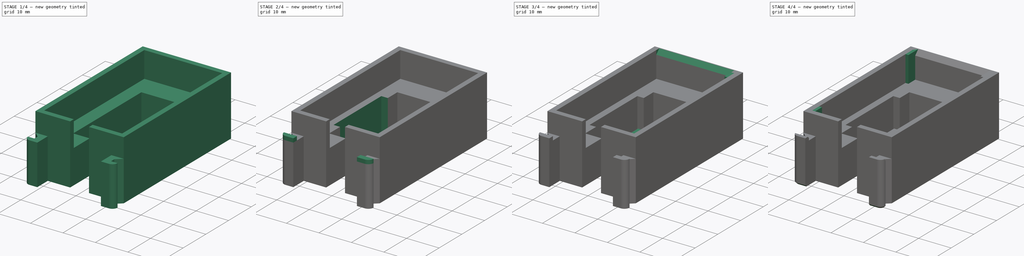
[diagram: build sequence overview — one tinted view per stage of 4, left to right]
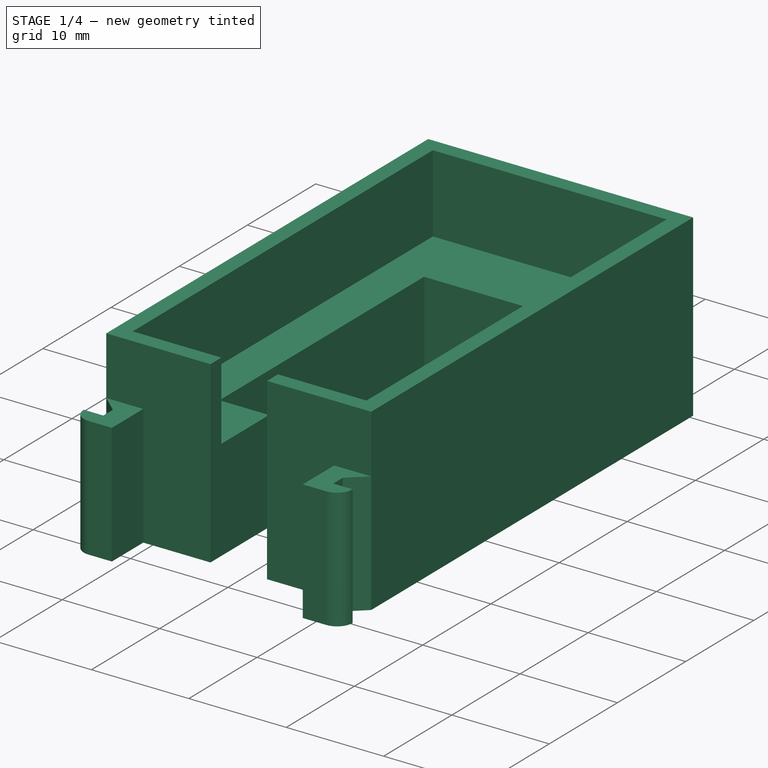
[diagram: stage 1 of 4 — iso view after this stage's code; geometry added in this stage tinted green]
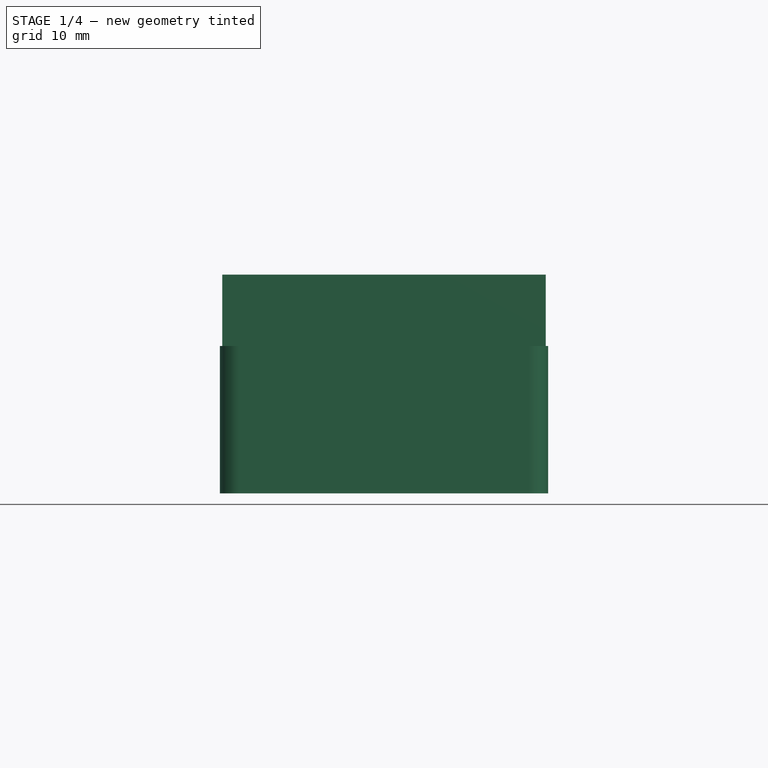
[diagram: stage 1 of 4 — front view after this stage's code; geometry added in this stage tinted green]
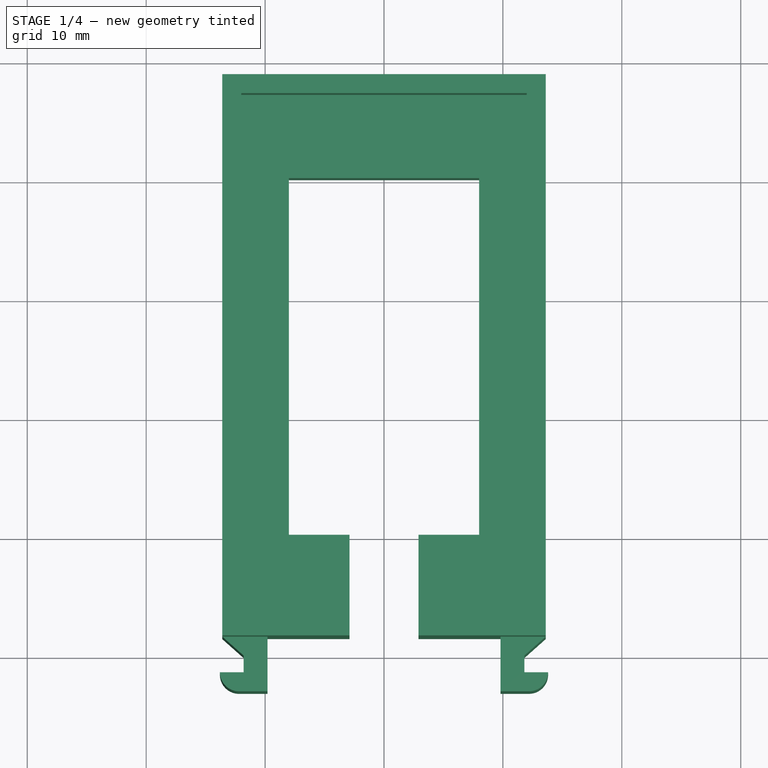
[diagram: stage 1 of 4 — top view after this stage's code; geometry added in this stage tinted green]
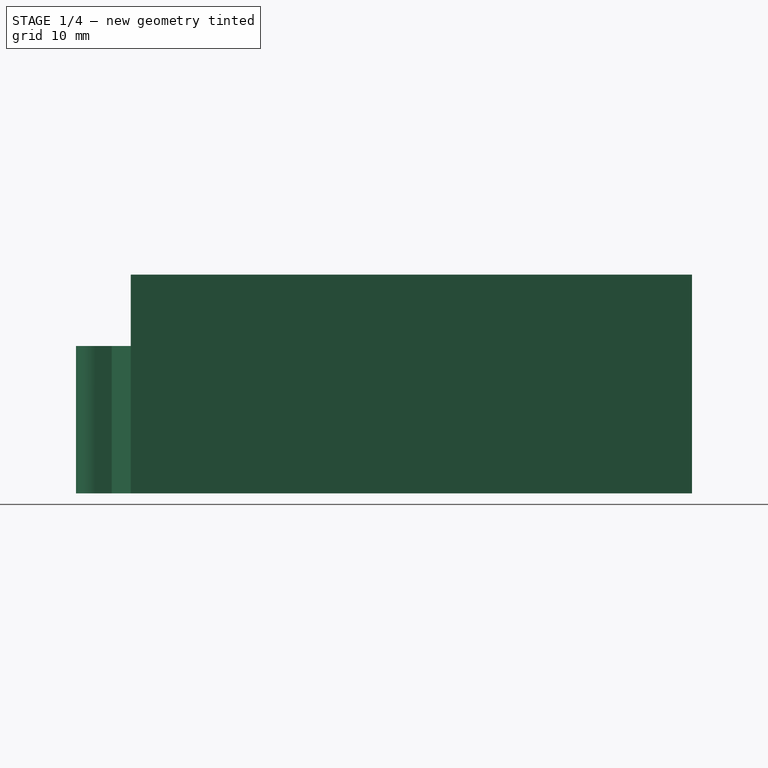
[diagram: stage 1 of 4 — right view after this stage's code; geometry added in this stage tinted green]
FCSTD DOCUMENT  (FreeCAD 0.21R33694 (Git))
Label: hub_holder
License: All rights reserved
LicenseURL: https://en.wikipedia.org/wiki/All_rights_reserved
objects: PartDesign::SubtractiveBox×3, PartDesign::Chamfer×3, Sketcher::SketchObject×2, PartDesign::Pad×2, PartDesign::Mirrored×2, PartDesign::AdditiveBox×2, PartDesign::Body×2, Spreadsheet::Sheet×1, PartDesign::FeatureBase×1, Part::Mirroring×1
note: 28 computed .brp shape members not serialized (recipe doc carries the construction recipe); baked Part::Feature solids carry a one-line shape summary decoded from their .brp

FEATURE [Spreadsheet::Sheet] Spreadsheet
  cells = A1='Name; B1='Value; C1='Description; D1='Fixed; E1='Calculated; F1='Public; G1='Axis; A2='bh_grid; B2(bh_grid)==5 mm; C2='The board holder grid size; D2='n; E2='n; F2='n; A3='bh_grid_x_size; B3(bh_grid_x_size)==trunc(bh_base_x / bh_grid / 2) * bh_grid * 2; E3='y; F3='n; G3='bh; A4='bh_grid_y_size; B4(bh_grid_y_size)==trunc((bh_base_x - bh_edge_to_center_of_first_grid_cutout_y) / bh_grid / 2) * bh_grid * 2; E4='y; F4='n; G4='bh; A5='bh_grid_x_amount; B5(bh_grid_x_amount)==trunc(bh_grid_x_size / bh_grid / 2) + 1; E5='y; F5='n; G5='bh; A6='bh_grid_y_amount; B6(bh_grid_y_amount)==trunc(bh_grid_y_size / bh_grid / 2) + 1; E6='y; F6='n; G6='bh; A7='bh_edge_to_usb_center_x; B7(bh_edge_to_usb_center_x)==3.5 * bh_grid; E7='y; G7='bh; A8='usb_socket_y; B8(usb_socket_y)==12.4 mm; C8='The cutout for the USB socket for (VID: Adafruit Industries LLC) (PID: 4055); D8='y; E8='n; F8='n; A9='usb_socket_x; B9(usb_socket_x)==23.2 mm; C9='The cutout for the USB socket for (VID: Adafruit Industries LLC) (PID: 4055); D9='y; E9='n; F9='n; A10='usb_socket_total_with_lip_x; B10(usb_socket_total_with_lip_x)==29 mm; C10='The total size with the lip of the USB socket for (VID: Adafruit Industries LLC) (PID: 4055); D10='y; E10='n; F10='n; A11='usb_socket_total_with_lip_y; B11(usb_socket_total_with_lip_y)==18.2 mm; C11='The total size with the lip of the USB socket for (VID: Adafruit Industries LLC) (PID: 4055); D11='y; E11='n; F11='n; A12='usb_socket_lip_only_z; B12(usb_socket_lip_only_z)==4.5 mm; C12='Only the lip of the USB socket for (VID: Adafruit Industries LLC) (PID: 4055); D12='y; E12='n; A13='usb_socket_lip_only_x; B13(usb_socket_lip_only_x)==(usb_socket_total_with_lip_x - usb_socket_x) / 2; C13='Only the lip of the USB socket for (VID: Adafruit Industries LLC) (PID: 4055); D13='y; E13='y; A14='usb_metal_gap; B14(usb_metal_gap)==2.7 mm; C14='The measured gap of the metal part of the USB plug between the casing and the lip of the usb socket; D14='y; E14='n; A15='usb_board_to_center_z; B15(usb_board_to_center_z)==mc_slot_offset_y / 2 - bh_base_z; A16='usb_metal_plug_width; B16(usb_metal_plug_width)==12.1 mm; A17='usb_metal_plug_height; B17(usb_metal_plug_height)==4.45 mm; A18='bh_base_x; B18(bh_base_x)==115 mm; C18='The base of the board holder; E18='y; G18='bh; A19='bh_base_y; B19(bh_base_y)==mc_grid - mc_back_thickness_z; C19='The base of the board holder; E19='y; G19='bh; A20='bh_base_z; B20(bh_base_z)==1.8 mm; E20='n; G20='bh; A25='bh_edge_to_center_of_first_grid_cutout_y; B25(bh_edge_to_center_of_first_grid_cutout_y)==usb_socket_lip_only_z + bh_grid / 2; D25='y; E25='y; G25='bh; A26='bh_support_beam_xy; B26(bh_support_beam_xy)==1.6 mm; C26='The width up the support beam to make the board holder more rigid, it should not interfere with the clip bottoms; D26='y; E26='n; G26='bh; A27='bh_support_beam_z; B27(bh_support_beam_z)==1.8 mm; D27='n; E27='n; G27='bh; A28='mc_back_thickness_z; B28(mc_back_thickness_z)==1.4 mm; A29='bh_stability_bar_z; B29(bh_stability_bar_z)==1.6 mm; A30='bh_stability_bar_width; B30(bh_stability_bar_width)==1.6 mm; A31='bh_stability_bar_x_size; B31(bh_stability_bar_x_size)==bh_base_x - 5 * bh_grid; A32='bh_stabiltiy_bar_x_amount; B32(bh_stabiltiy_bar_x_amount)==trunc(bh_stability_bar_x_size / bh_grid / 2) + 1; A33='bh_angle_connector_xz; B33(bh_angle_connector_xz)==3 mm; A34='bh_stability_bar_x_standoff; B34(bh_stability_bar_x_standoff)==bh_angle_connector_xz + 2 mm; A35='bh_stability_bar_y_size; B35(bh_stability_bar_y_size)==trunc((bh_base_x - bh_edge_to_center_of_first_grid_cutout_y) / bh_grid / 2) * bh_grid * 2; A36='bh_stabiltiy_bar_y_amount; B36(bh_stabiltiy_bar_y_amount)==trunc(bh_stability_bar_y_size / bh_grid / 2) + 1; A37='clip_height_from_board; B37(clip_height_from_board)==1.6 mm; A38='clip_overhang; B38(clip_overhang)==1.6 mm; A39='clip_thickness; B39(clip_thickness)==1.4 mm; A40='clip_deflection; B40(clip_deflection)==0.2 mm; C42=0; A43='center_usb_grid_offset_x; B43(center_usb_grid_offset_x)==bh_edge_to_usb_center_x - bh_grid * 3.5; D43='y; A44='srh_length; B44(srh_length)==bh_grid * 5; A45='srh_width; B45(srh_width)==bh_grid * 3; A46='srh_center_diameter; B46(srh_center_diameter)==5 mm; A47='srh_bottom_cutout; B47(srh_bottom_cutout)==srh_center_diameter * 0.8; A48='srh_ridge_grid; B48(srh_ridge_grid)==1.2 mm; D48='n; A51='src_bend_diameter; B51(src_bend_diameter)==0.4 mm; A52='src_clip_thickness; B52(src_clip_thickness)==1.4 mm; A53=0; A54='mc_inner_base_x; B54(mc_inner_base_x)==bh_base_x; E54='y; A55='mc_inner_base_y; B55(mc_inner_base_y)==mc_inner_base_x; A56='mc_edge_inside_support_x; B56(mc_edge_inside_support_x)==4 mm; C56='The extra support on the extentding inside for the module container; E56='n; A57='mc_grid; B57(mc_grid)==mc_inner_base_x + mc_inner_thickness * 2 + mc_dove_extrusion; E57='y; A58='mc_inner_thickness; B58(mc_inner_thickness)==1.5 mm; D58='y; E58='n; A59='mc_dove_extrusion; B59(mc_dove_extrusion)==2 mm; D59='y; E59='n; A60='mc_dove_angle; B60(mc_dove_angle)==60 °; A61='mc_slot_offset_y; B61(mc_slot_offset_y)==24 mm; A62='mc_slot_count; B62(mc_slot_count)=4; E62='n; A63='mc_bottom_center_dove_tail; B63(mc_bottom_center_dove_tail)==mc_slot_offset_y * (mc_slot_count / 2 - 0.25); A64='mc_dove_wing; B64(mc_dove_wing)==mc_dove_extrusion / tan(mc_dove_angle); A65='mc_dove_outer_shorter; B65(mc_dove_outer_shorter)==(mc_slot_offset_y + 2 * mc_dove_wing - 0.2 mm) / 2; E65='y; A66='mc_base_z; B66(mc_base_z)==mc_grid; A67='mc_bottom_usb_center_y; B67(mc_bottom_usb_center_y)==mc_slot_offset_y * mc_slot_count / 2 - mc_slot_offset_y / 2; A68='mc_top_of_bottom_board_y; B68(mc_top_of_bottom_board_y)==mc_bottom_usb_center_y + usb_board_to_center_z; A69='mc_slot_flair; B69(mc_slot_flair)==2 mm; +68 more cells
FEATURE [Sketcher::SketchObject] Sketch  label="Sketch_uh_half_base"
  FullyConstrained = true
  MapMode = 5
  Support = -> [XY_Plane]
  expr: Constraints[10] = Spreadsheet.uh_clip_top_to_support_bottom
  expr: Constraints[11] = Spreadsheet.uh_clip_overhang
  expr: Constraints[12] = -Spreadsheet.uh_clip_seperation / 2
  expr: Constraints[13] = Spreadsheet.uh_clip_thickness
  expr: Constraints[14] = Spreadsheet.uh_clip_extrustion
  expr: Constraints[21] = Spreadsheet.uh_hub_x / 2 + Spreadsheet.uh_wall
  expr: Constraints[22] = Spreadsheet.uh_hub_y + Spreadsheet.uh_wall * 2
  expr: Constraints[24] = Spreadsheet.uh_clip_extrustion
  expr: Constraints[27] = Spreadsheet.uh_hub_inside_support_y + Spreadsheet.uh_wall
  expr: Constraints[30] = Spreadsheet.uh_hub_x / 2 - Spreadsheet.uh_hub_inside_support_x
  expr: Constraints[35] = Spreadsheet.uh_hub_y - Spreadsheet.uh_hub_inside_support_y * 2
  expr: Constraints[36] = Spreadsheet.uh_center_cutout
  sketch-geometry (14):
    g0: LineSegment StartX=-11.8 StartY=0 StartZ=0 EndX=-11.8 EndY=-1.4 EndZ=0
    g1: LineSegment StartX=-11.8 StartY=-1.4 StartZ=0 EndX=-13.8 EndY=-1.4 EndZ=0
    g2: LineSegment StartX=-11.8 StartY=0 StartZ=0 EndX=-13.6 EndY=1.6 EndZ=0
    g3: ArcOfCircle CenterX=-12.2 CenterY=-1.4 CenterZ=0 NormalX=0 NormalY=0 NormalZ=1 AngleXU=0 Radius=1.6 StartAngle=3.14159 EndAngle=4.71239
    g4: LineSegment StartX=-12.2 StartY=-3 StartZ=0 EndX=-9.8 EndY=-3 EndZ=0
    g5: LineSegment StartX=-9.8 StartY=-3 StartZ=0 EndX=-9.8 EndY=1.6 EndZ=0
    g6: LineSegment StartX=-13.6 StartY=1.6 StartZ=0 EndX=-13.6 EndY=48.8 EndZ=0
    g7: LineSegment StartX=-13.6 StartY=48.8 StartZ=0 EndX=0 EndY=48.8 EndZ=0
    g8: LineSegment StartX=0 StartY=48.8 StartZ=0 EndX=0 EndY=40.2 EndZ=0
    g9: LineSegment StartX=0 StartY=40.2 StartZ=0 EndX=-8 EndY=40.2 EndZ=0
    g10: LineSegment StartX=-8 StartY=40.2 StartZ=0 EndX=-8 EndY=10.2 EndZ=0
    g11: LineSegment StartX=-8 StartY=10.2 StartZ=0 EndX=-2.9 EndY=10.2 EndZ=0
    g12: LineSegment StartX=-9.8 StartY=1.6 StartZ=0 EndX=-2.9 EndY=1.6 EndZ=0
    g13: LineSegment StartX=-2.9 StartY=10.2 StartZ=0 EndX=-2.9 EndY=1.6 EndZ=0
  constraints (43):
    c: PointOnObject(g0,g-1)
    c: Vertical(g0)
    c: Coincident(g1,g0)
    c: Horizontal(g1)
    c: Coincident(g2,g0)
    c: Coincident(g3,g1)
    c: Perpendicular(g3,g1)
    c: Horizontal(g4)
    c: Coincident(g5,g4)
    c: Vertical(g5)
    c: DistanceY(g0,g0) = 1.4
    c: DistanceX(g1,g1) = 2
    c: DistanceX(g0) = -11.8
    c: DistanceX(g0,g4) = 2
    c: DistanceY(g3,g3) = 1.6
    c: Vertical(g3,g3)
    c: Coincident(g4,g3)
    c: Vertical(g6)
    c: Coincident(g7,g6)
    c: Horizontal(g7)
    c: PointOnObject(g7,g-2)
    c: DistanceX(g7,g7) = 13.6
    c: DistanceY(g6,g6) = 47.2
    c: Coincident(g6,g2)
    c: DistanceY(g-1,g2) = 1.6
    c: Coincident(g8,g7)
    c: Vertical(g8)
    c: DistanceY(g8,g8) = 8.6
    c: Coincident(g9,g8)
    c: Horizontal(g9)
    c: DistanceX(g9,g9) = 8
    c: Coincident(g10,g9)
    c: Vertical(g10)
    c: Coincident(g11,g10)
    c: Horizontal(g11)
    c: DistanceY(g10,g10) = 30
    c: DistanceX(g11,g-1) = 2.9
    c: Horizontal(g5,g2)
    c: Coincident(g12,g5)
    c: Horizontal(g12)
    c: Coincident(g13,g11)
    c: Vertical(g13)
    c: Coincident(g12,g13)
FEATURE [PartDesign::Pad] Pad
  Direction = (0,0,1)
  Length = 18.4
  Length2 = 10
  Profile = -> Sketch
  ReferenceAxis = -> Sketch [N_Axis]
  Type = 0
  expr: Length = Spreadsheet.uh_hub_support_z
FEATURE [PartDesign::Mirrored] Mirrored
  BaseFeature = -> Pad
  MirrorPlane = -> Sketch [V_Axis]
  Originals = -> [Pad]
FEATURE [PartDesign::SubtractiveBox] Box
  AttacherType = Attacher::AttachEngine3D
  AttachmentOffset = pos=(50,1.6,12.4) rot=(0,0,1;3.14159rad)
  BaseFeature = -> Mirrored
  Height = 10
  Length = 100
  MapMode = 5
  Placement = pos=(50,1.6,12.4) rot=(0,0,1;3.14159rad)
  Support = -> [XY_Plane]
  Width = 10
  expr: .AttachmentOffset.Base.y = Spreadsheet.uh_clip_extrustion
  expr: .AttachmentOffset.Base.z = Spreadsheet.uh_clip_z
FEATURE [PartDesign::SubtractiveBox] Box001
  AttacherType = Attacher::AttachEngine3D
  AttachmentOffset = pos=(-12,3.2,10.4) rot=(0,0,1;0rad)
  BaseFeature = -> Box
  Height = 100
  Length = 24
  MapMode = 5
  Placement = pos=(-12,3.2,10.4) rot=(0,0,1;0rad)
  Support = -> [XY_Plane]
  Width = 44
  expr: .AttachmentOffset.Base.x = -Spreadsheet.uh_hub_x / 2
  expr: .AttachmentOffset.Base.y = Spreadsheet.uh_clip_extrustion + Spreadsheet.uh_wall
  expr: .AttachmentOffset.Base.z = Spreadsheet.uh_hub_offset_z
  expr: Length = Spreadsheet.uh_hub_x
  expr: Width = Spreadsheet.uh_hub_y
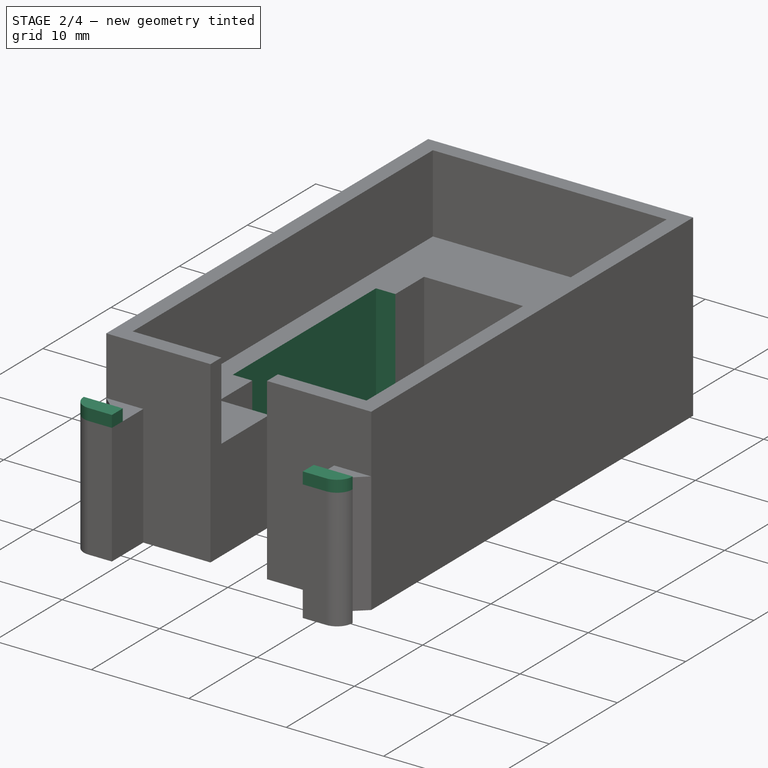
[diagram: stage 2 of 4 — iso view after this stage's code; geometry added in this stage tinted green]
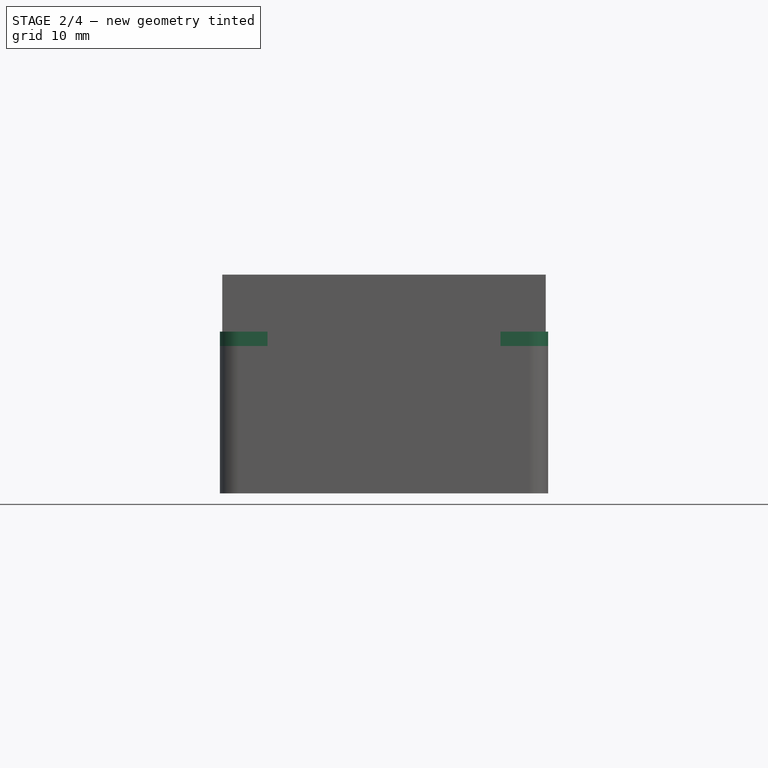
[diagram: stage 2 of 4 — front view after this stage's code; geometry added in this stage tinted green]
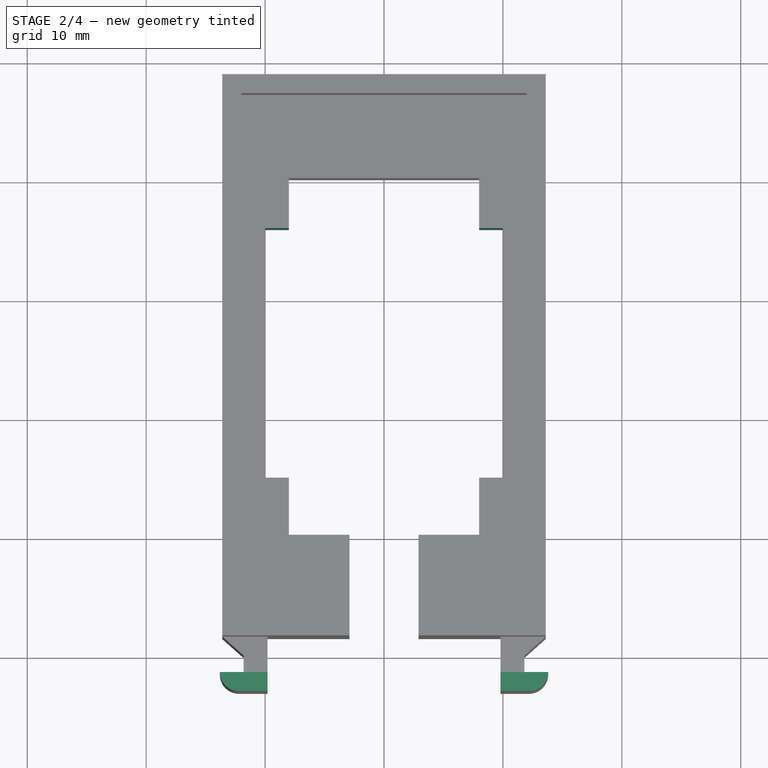
[diagram: stage 2 of 4 — top view after this stage's code; geometry added in this stage tinted green]
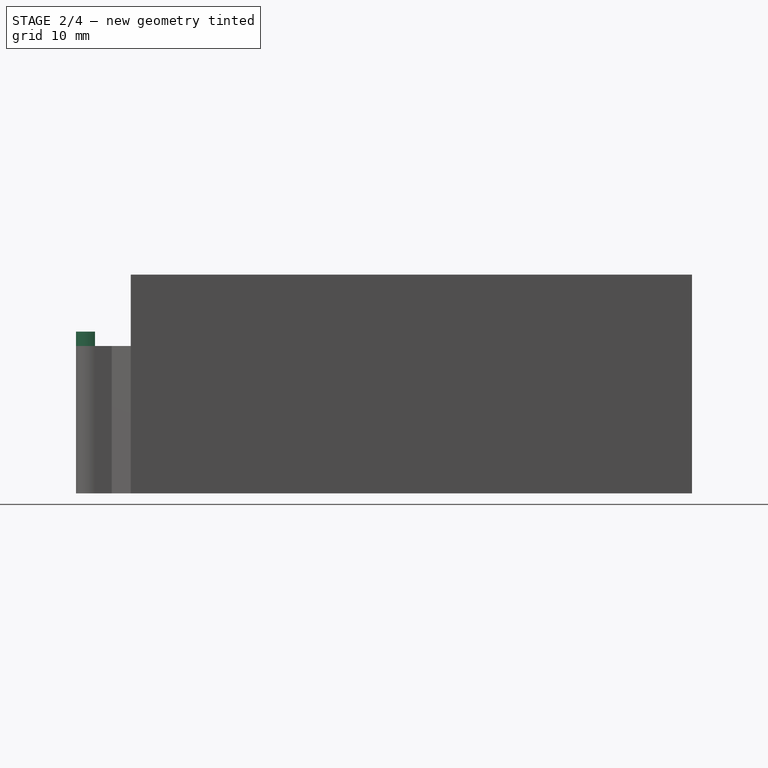
[diagram: stage 2 of 4 — right view after this stage's code; geometry added in this stage tinted green]
FEATURE [PartDesign::SubtractiveBox] Box002
  AttacherType = Attacher::AttachEngine3D
  AttachmentOffset = pos=(-10,15,0) rot=(0,0,1;0rad)
  BaseFeature = -> Box001
  Height = 100
  Length = 20
  MapMode = 5
  Placement = pos=(-10,15,0) rot=(0,0,1;0rad)
  Support = -> [XY_Plane]
  Width = 21
  expr: .AttachmentOffset.Base.x = -Spreadsheet.uh_hub_x / 2 + 2 mm
  expr: Length = Spreadsheet.uh_hub_x - 4 mm
FEATURE [Sketcher::SketchObject] Sketch001  label="Sketch_uh_half_base001"
  AttachmentOffset = pos=(0,0,12.4) rot=(0,0,1;0rad)
  FullyConstrained = true
  MapMode = 5
  Placement = pos=(0,0,12.4) rot=(0,0,1;0rad)
  Support = -> [XY_Plane]
  expr: .AttachmentOffset.Base.z = Spreadsheet.uh_clip_z
  expr: Constraints[10] = Spreadsheet.uh_clip_top_to_support_bottom
  expr: Constraints[4] = Spreadsheet.uh_clip_overhang
  expr: Constraints[5] = -Spreadsheet.uh_clip_seperation / 2
  expr: Constraints[6] = Spreadsheet.uh_clip_thickness
  expr: Constraints[7] = Spreadsheet.uh_clip_extrustion
  sketch-geometry (5):
    g0: LineSegment StartX=-11.8 StartY=-1.4 StartZ=0 EndX=-13.8 EndY=-1.4 EndZ=0
    g1: ArcOfCircle CenterX=-12.2 CenterY=-1.4 CenterZ=0 NormalX=0 NormalY=0 NormalZ=1 AngleXU=0 Radius=1.6 StartAngle=3.14159 EndAngle=4.71239
    g2: LineSegment StartX=-12.2 StartY=-3 StartZ=0 EndX=-9.8 EndY=-3 EndZ=0
    g3: LineSegment StartX=-9.8 StartY=-3 StartZ=0 EndX=-9.8 EndY=-1.4 EndZ=0
    g4: LineSegment StartX=-9.8 StartY=-1.4 StartZ=0 EndX=-11.8 EndY=-1.4 EndZ=0
  constraints (16):
    c: Horizontal(g0)
    c: Coincident(g1,g0)
    c: Perpendicular(g1,g0)
    c: Horizontal(g2)
    c: DistanceX(g0,g0) = 2
    c: DistanceX(g0) = -11.8
    c: DistanceX(g0,g2) = 2
    c: DistanceY(g1,g1) = 1.6
    c: Vertical(g1,g1)
    c: Coincident(g2,g1)
    c: DistanceY(g0,g-1) = 1.4
    c: Coincident(g3,g2)
    c: Vertical(g3)
    c: Coincident(g4,g3)
    c: Coincident(g4,g0)
    c: Horizontal(g4)
FEATURE [PartDesign::Pad] Pad001
  BaseFeature = -> Box002
  Direction = (0,0,1)
  Length = 1.2
  Length2 = 10
  Placement = pos=(-10,15,0) rot=(0,0,1;0rad)
  Profile = -> Sketch001
  ReferenceAxis = -> Sketch001 [N_Axis]
  Type = 0
FEATURE [PartDesign::Mirrored] Mirrored001
  BaseFeature = -> Pad001
  MirrorPlane = -> Sketch001 [V_Axis]
  Originals = -> [Pad001]
  Placement = pos=(-10,15,0) rot=(0,0,1;0rad)
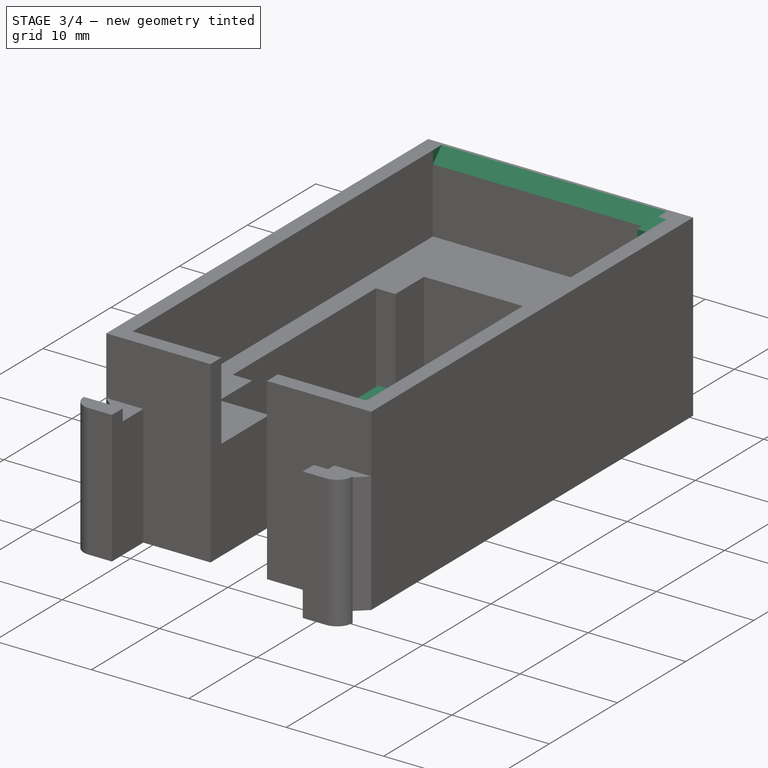
[diagram: stage 3 of 4 — iso view after this stage's code; geometry added in this stage tinted green]
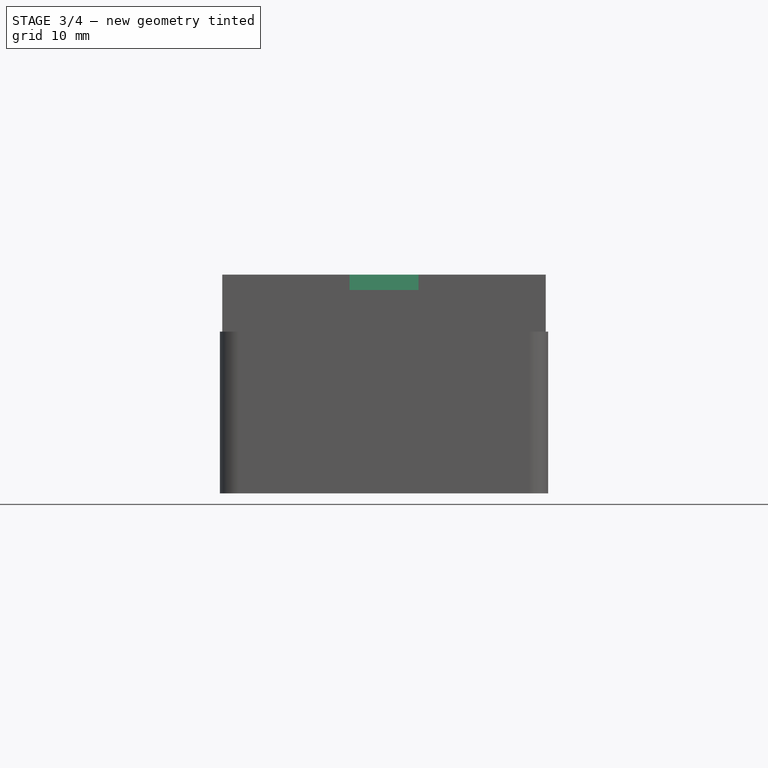
[diagram: stage 3 of 4 — front view after this stage's code; geometry added in this stage tinted green]
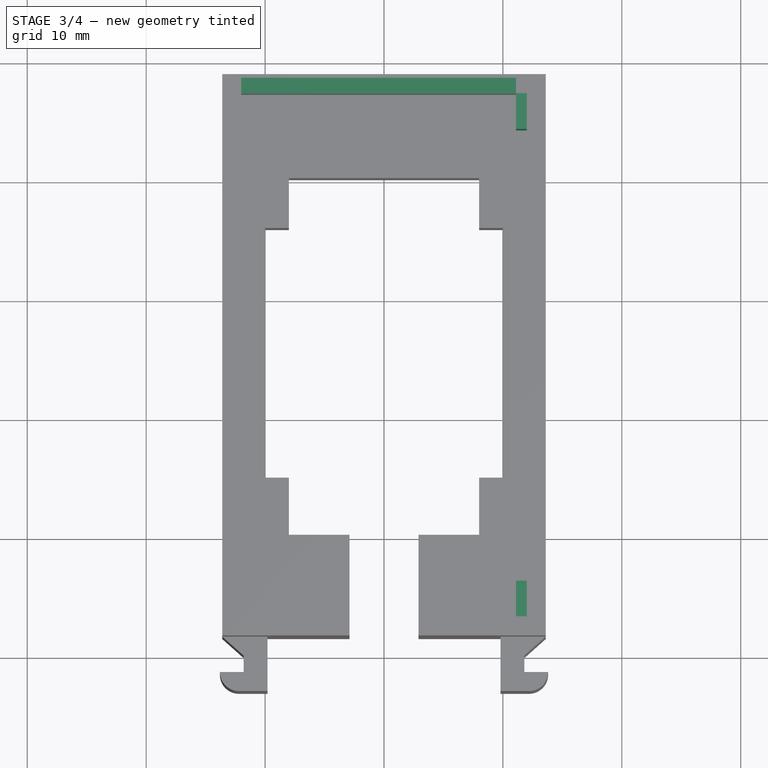
[diagram: stage 3 of 4 — top view after this stage's code; geometry added in this stage tinted green]
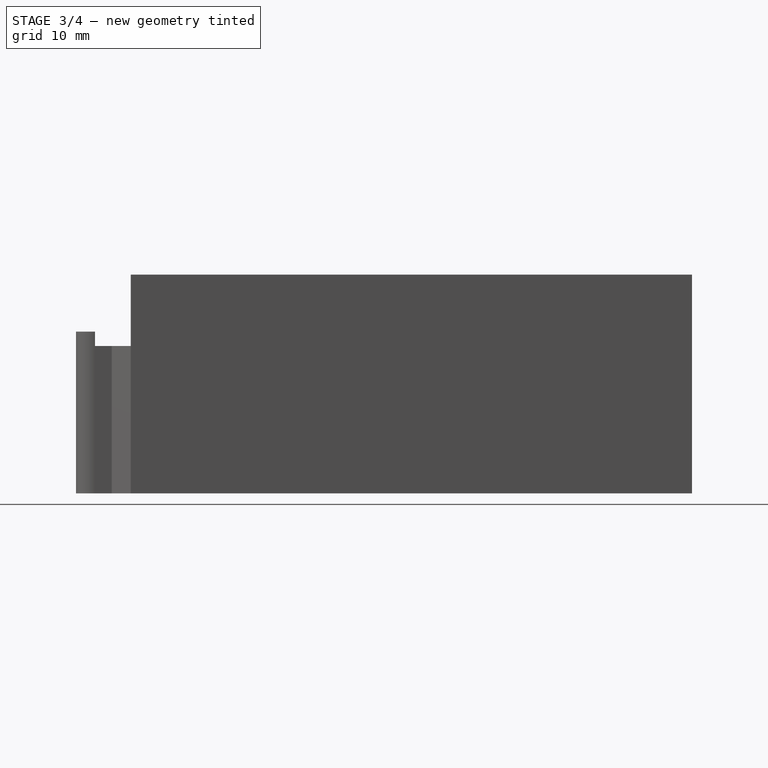
[diagram: stage 3 of 4 — right view after this stage's code; geometry added in this stage tinted green]
FEATURE [PartDesign::AdditiveBox] Box003
  AttacherType = Attacher::AttachEngine3D
  AttachmentOffset = pos=(11.1,3.2,10.4) rot=(0,0,1;0rad)
  BaseFeature = -> Mirrored001
  Height = 8
  Length = 1.1
  MapMode = 5
  Placement = pos=(11.1,3.2,10.4) rot=(0,0,1;0rad)
  Support = -> [XY_Plane]
  Width = 3
FEATURE [PartDesign::AdditiveBox] Box004
  AttacherType = Attacher::AttachEngine3D
  AttachmentOffset = pos=(11.1,44.2,10.4) rot=(0,0,1;0rad)
  BaseFeature = -> Box003
  Height = 8
  Length = 1.1
  MapMode = 5
  Placement = pos=(11.1,44.2,10.4) rot=(0,0,1;0rad)
  Support = -> [XY_Plane]
  Width = 3
FEATURE [PartDesign::Chamfer] Chamfer
  Angle = 45
  Base = -> Box004 [Edge86,Edge143]
  BaseFeature = -> Box004
  ChamferType = 0
  FlipDirection = false
  Placement = pos=(11.1,44.2,10.4) rot=(0,0,1;0rad)
  Size = 1.3
  Size2 = 1
  SupportTransform = false
  UseAllEdges = false
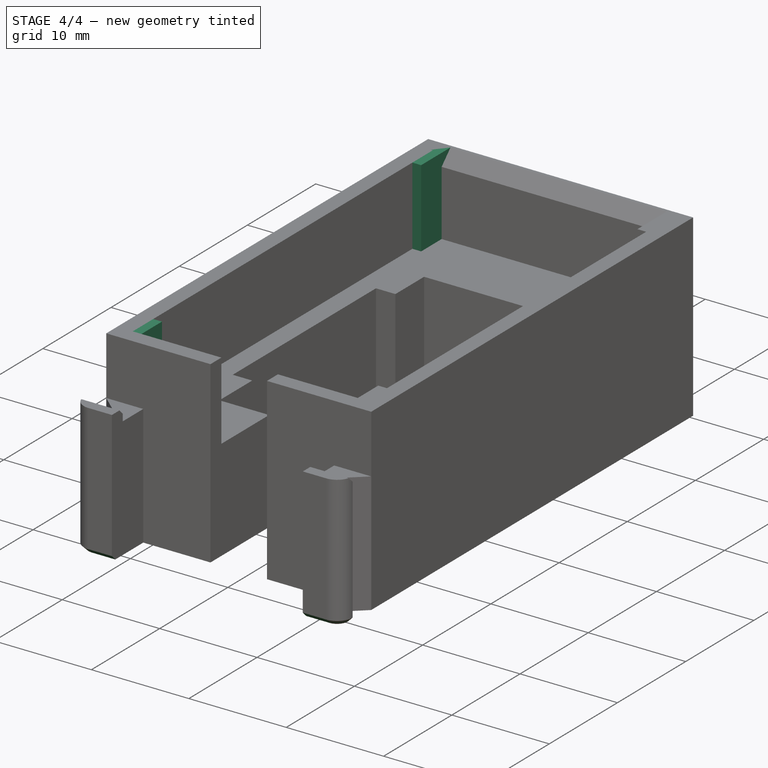
[diagram: stage 4 of 4 — iso view after this stage's code; geometry added in this stage tinted green]
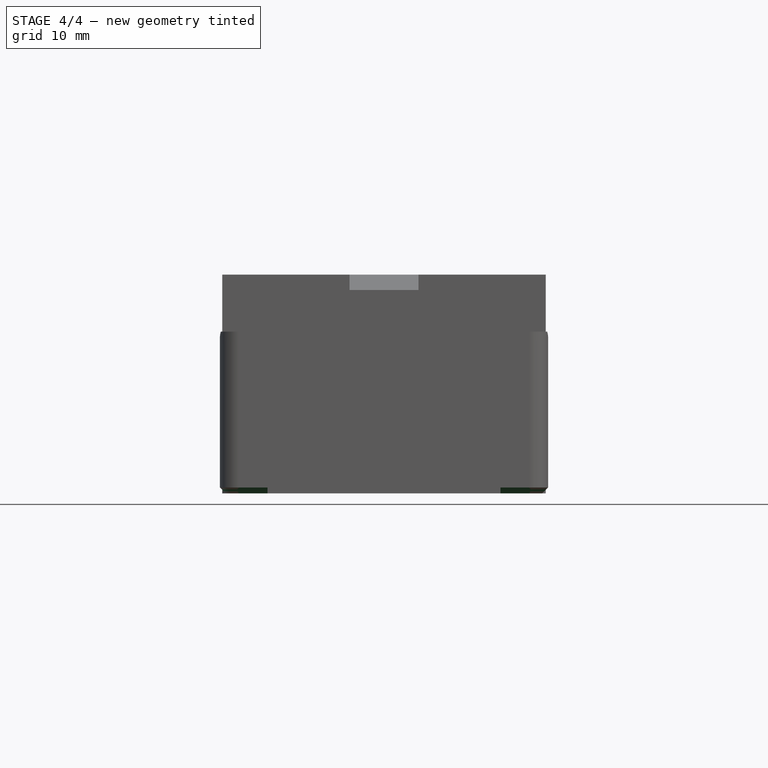
[diagram: stage 4 of 4 — front view after this stage's code; geometry added in this stage tinted green]
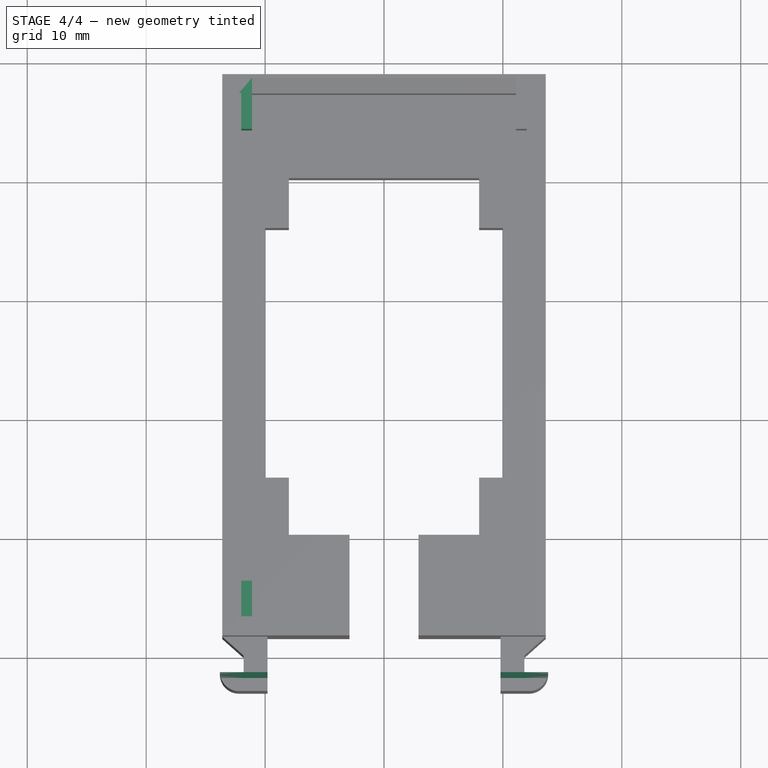
[diagram: stage 4 of 4 — top view after this stage's code; geometry added in this stage tinted green]
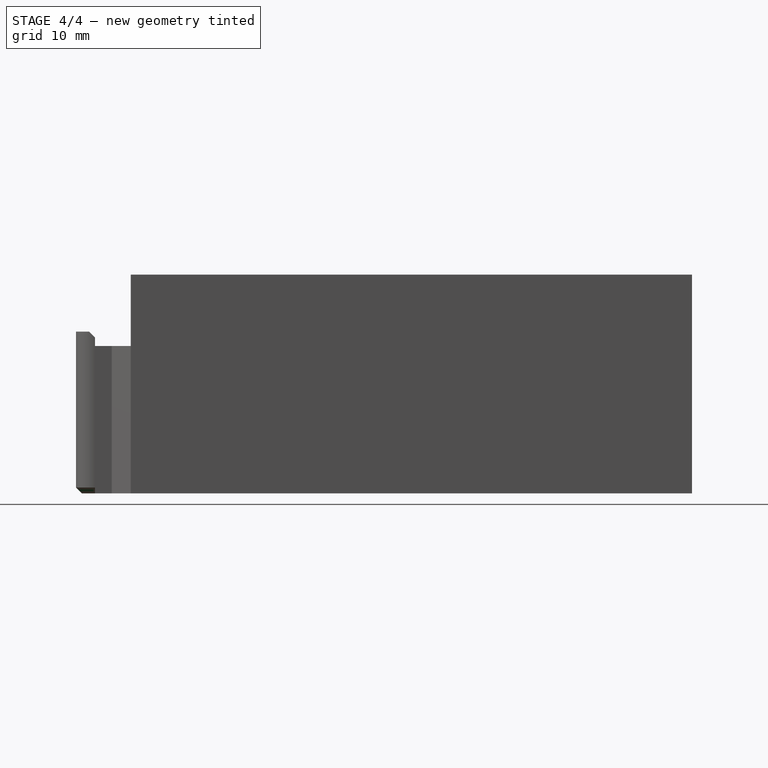
[diagram: stage 4 of 4 — right view after this stage's code; geometry added in this stage tinted green]
FEATURE [PartDesign::Chamfer] Chamfer001
  Angle = 45
  Base = -> Chamfer [Edge92,Edge130]
  BaseFeature = -> Chamfer
  ChamferType = 0
  FlipDirection = false
  Placement = pos=(11.1,44.2,10.4) rot=(0,0,1;0rad)
  Size = 0.5
  Size2 = 1
  SupportTransform = false
  UseAllEdges = false
FEATURE [PartDesign::Chamfer] Chamfer002
  Angle = 45
  Base = -> Chamfer001 [Edge197,Edge149]
  BaseFeature = -> Chamfer001
  ChamferType = 0
  FlipDirection = false
  Placement = pos=(11.1,44.2,10.4) rot=(0,0,1;0rad)
  Size = 0.5
  Size2 = 1
  SupportTransform = false
  UseAllEdges = false
FEATURE [PartDesign::Body] Body
  Group = -> [Sketch,Pad,Mirrored,Box,Box001,Box002,Sketch001,Pad001,Mirrored001,Box003,Box004,Chamfer,Chamfer001,Chamfer002]
  Origin = -> Origin
  Tip = -> Chamfer002
FEATURE [PartDesign::FeatureBase] Clone
  BaseFeature = -> Body
FEATURE [PartDesign::Body] Body001  label="hub_bottom"
  Group = -> [Clone]
  Origin = -> Origin001
  Tip = -> Clone
FEATURE [Part::Mirroring] Mirror  label="hub_top"
  Base = (0,0,0)
  Normal = (1,0,0)
  Source = -> Body
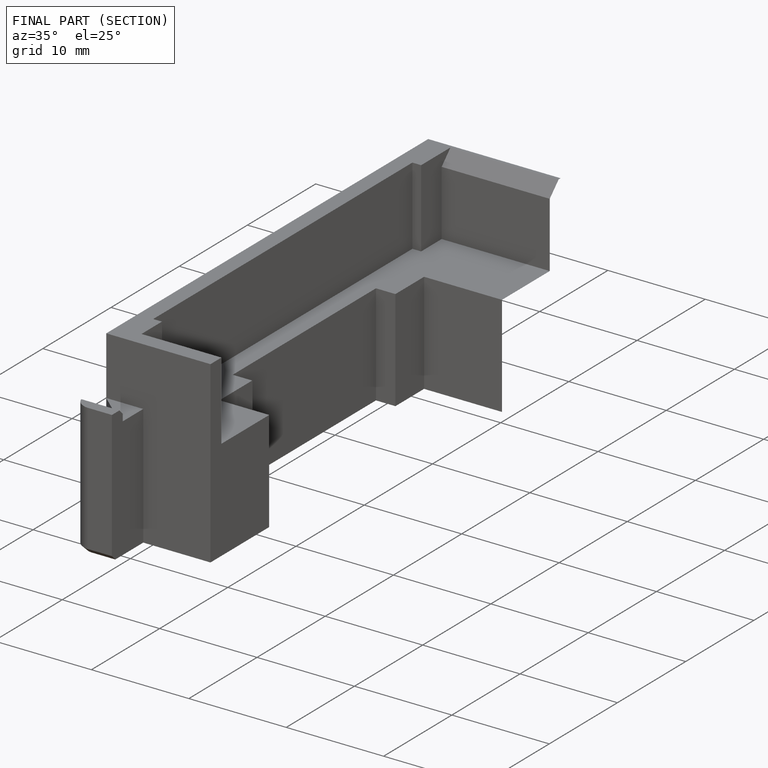
[diagram: finished part — half-section view (interior)]
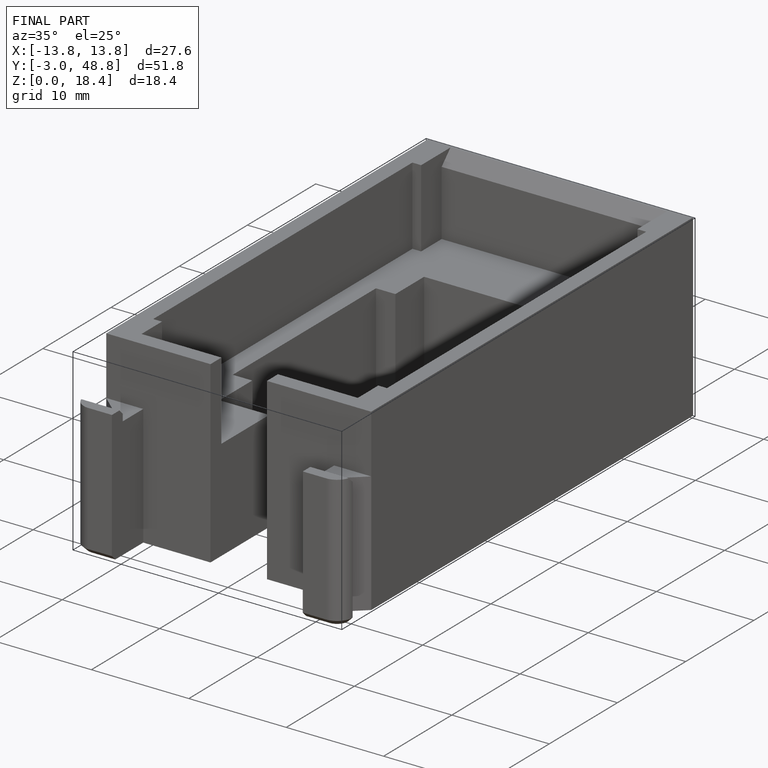
[diagram: finished part — iso view with bounding-box wireframe]
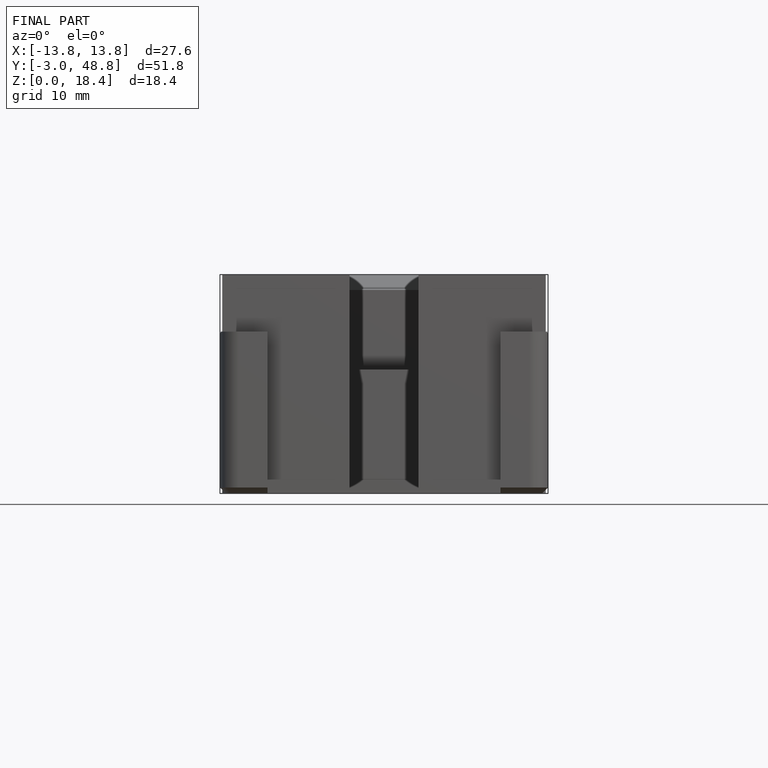
[diagram: finished part — front view with bounding-box wireframe]
